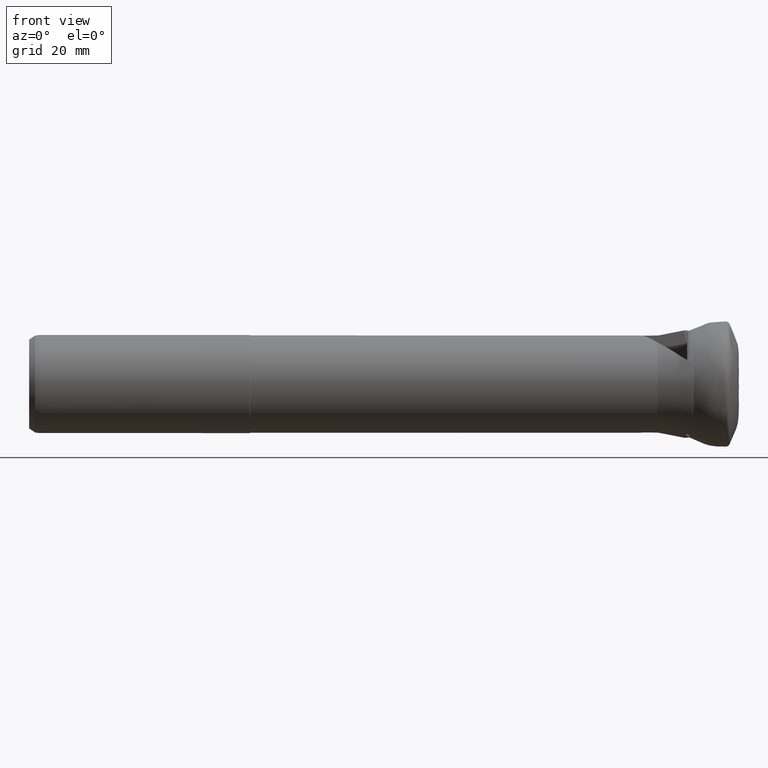
[diagram: clean part render]
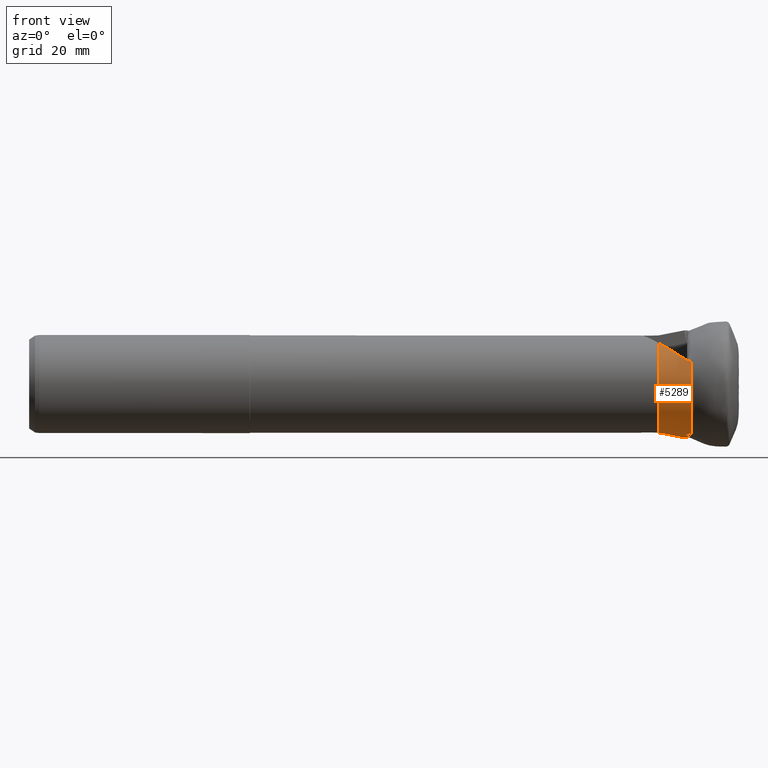
[diagram: same view with one face highlighted and labeled with its STEP entity id]
A machine part, front view. The second image highlights one B-rep face of the part: STEP entity #5289.
In plain terms, the highlighted conical surface has half-angle 10.845 deg.
Its self-contained STEP definition (entity closure, byte-faithful):
#1 = CARTESIAN_POINT ( 'NONE',  ( -12.65968069004880500, -1.092420562634629100, -13.68781149856920200 ) ) ;
#2 = CARTESIAN_POINT ( 'NONE',  ( -12.79276334509418900, -0.8059738972701883100, -13.68212314345359300 ) ) ;
#8 = CARTESIAN_POINT ( 'NONE',  ( -13.40528090614652800, -11.74800982124328100, 6.827252767057250300 ) ) ;
#16 = CARTESIAN_POINT ( 'NONE',  ( -13.23310108302329800, -11.85373457883678200, 6.710974604995033800 ) ) ;
#26 = CARTESIAN_POINT ( 'NONE',  ( -12.84435055286813700, -0.4954412597049117600, -13.68625134253330300 ) ) ;
#36 = CARTESIAN_POINT ( 'NONE',  ( -12.83263345930503400, -0.6535574891598466800, -13.68277371050550600 ) ) ;
#151 = AXIS2_PLACEMENT_3D ( 'NONE', #5369, #4311, #425 ) ;
#189 = CARTESIAN_POINT ( 'NONE',  ( -12.45612504931564500, -1.332140386985413100, -13.70499935697644000 ) ) ;
#219 = CARTESIAN_POINT ( 'NONE',  ( -15.03643451692116000, -0.5101313038015200500, -13.26643968536416600 ) ) ;
#275 = CARTESIAN_POINT ( 'NONE',  ( -19.32557320726839800, -6.787148216991650600, 10.44156546968564000 ) ) ;
#367 = EDGE_CURVE ( 'NONE', #3466, #5135, #5146, .T. ) ;
#374 = CARTESIAN_POINT ( 'NONE',  ( -12.45612504931564500, -1.332140386985413100, -13.70499935697644000 ) ) ;
#385 = CARTESIAN_POINT ( 'NONE',  ( -17.18135353531055300, -0.6601186526344676700, -12.84862977732666100 ) ) ;
#425 = DIRECTION ( 'NONE',  ( 0.0000000000000000000, 0.0000000000000000000, -1.000000000000000000 ) ) ;
#723 = CARTESIAN_POINT ( 'NONE',  ( -12.67954887150709800, -12.14880422192221800, 6.391421337643772700 ) ) ;
#807 = CARTESIAN_POINT ( 'NONE',  ( -19.32557320726839500, -0.8100570984010128100, -12.42720716309479600 ) ) ;
#814 = CARTESIAN_POINT ( 'NONE',  ( -12.84698300556499500, -0.4598028699455925500, -13.68699039805626700 ) ) ;
#817 = CARTESIAN_POINT ( 'NONE',  ( -12.86167808883134900, -0.4265643384666993300, -13.68529023100981100 ) ) ;
#838 = CARTESIAN_POINT ( 'NONE',  ( -12.89099143549186300, -0.3601073089109347900, -13.68154237176579500 ) ) ;
#842 = CARTESIAN_POINT ( 'NONE',  ( -12.87634762523083200, -0.3933323494160804700, -13.68347421484867400 ) ) ;
#917 = CARTESIAN_POINT ( 'NONE',  ( -11.90381186348707500, -2.532479912616487600, -13.65546093501030700 ) ) ;
#1039 = ORIENTED_EDGE ( 'NONE', *, *, #4870, .T. ) ;
#1075 = EDGE_LOOP ( 'NONE', ( #4043, #3521, #5476, #1039, #1706, #2922, #3462, #4011, #5732, #3953, #5773 ) ) ;
#1083 = CARTESIAN_POINT ( 'NONE',  ( -11.02894916797867400, -5.760357854639778500, -12.80719041735890200 ) ) ;
#1101 = CARTESIAN_POINT ( 'NONE',  ( -11.15270846482246500, -5.804094255224002900, -12.76152200131287800 ) ) ;
#1119 = CARTESIAN_POINT ( 'NONE',  ( -11.28825498651624300, -5.820762174248489600, -12.72524407500796400 ) ) ;
#1133 = CARTESIAN_POINT ( 'NONE',  ( -11.55719903894039100, -5.797303258961080500, -12.67931739226733400 ) ) ;
#1193 = CARTESIAN_POINT ( 'NONE',  ( -11.69204503846278200, -5.756919555196454000, -12.66947479727533500 ) ) ;
#1246 = CARTESIAN_POINT ( 'NONE',  ( -11.61870751189143800, -3.128099959777931100, -13.57425423911942500 ) ) ;
#1281 = CARTESIAN_POINT ( 'NONE',  ( -13.40528090614652800, -11.74800982124328100, 6.827252767057250300 ) ) ;
#1298 = CARTESIAN_POINT ( 'NONE',  ( -11.93513915040344600, -5.629116608085444900, -12.67583450436238700 ) ) ;
#1318 = CARTESIAN_POINT ( 'NONE',  ( -12.04338611504323700, -5.542483340353614500, -12.69161613137120900 ) ) ;
#1329 = CARTESIAN_POINT ( 'NONE',  ( -12.22102579417288500, -5.337497540033777600, -12.74228971231637400 ) ) ;
#1340 = CARTESIAN_POINT ( 'NONE',  ( -12.28871606388787400, -5.221918529721213200, -12.77632694363128300 ) ) ;
#1365 = CARTESIAN_POINT ( 'NONE',  ( -12.37862935809820000, -4.972436688421540300, -12.85700836973423700 ) ) ;
#1366 = CONICAL_SURFACE ( 'NONE', #2837, 14.04299999999999700, 0.1892808887716079800 ) ;
#1378 = CARTESIAN_POINT ( 'NONE',  ( -12.39909997961242800, -4.843204250657307400, -12.90213077118152400 ) ) ;
#1383 = CARTESIAN_POINT ( 'NONE',  ( -11.02894916797865900, -12.79865063447538300, 5.779307132921980300 ) ) ;
#1387 = CARTESIAN_POINT ( 'NONE',  ( -12.38954685881845700, -4.584583892997182300, -12.99821680240491500 ) ) ;
#1408 = CARTESIAN_POINT ( 'NONE',  ( -12.35904825581561200, -4.457667082820877100, -13.04833446378184900 ) ) ;
#1421 = CARTESIAN_POINT ( 'NONE',  ( -12.24911642754527600, -4.226277682618597700, -13.14722822256404400 ) ) ;
#1428 = CARTESIAN_POINT ( 'NONE',  ( -12.16890843064926400, -4.121321713930150600, -13.19633598927820900 ) ) ;
#1493 = CIRCLE ( 'NONE', #3008, 12.45358062474983500 ) ;
#1499 = CARTESIAN_POINT ( 'NONE',  ( -11.97132206715624900, -3.954475031664891100, -13.28678769912566800 ) ) ;
#1501 = B_SPLINE_CURVE_WITH_KNOTS ( 'NONE', 3,
 ( #1900, #219, #385, #2316 ),
 .UNSPECIFIED., .F., .F.,
 ( 4, 4 ),
 ( 0.001901110023278222800, 0.008472232262891068000 ),
 .UNSPECIFIED. ) ;
#1550 = CARTESIAN_POINT ( 'NONE',  ( -13.05368916442701800, -11.95486881565107000, 6.600167208681215300 ) ) ;
#1555 = CARTESIAN_POINT ( 'NONE',  ( -11.72447574804194100, -3.855969777800164300, -13.36460931204083900 ) ) ;
#1632 = FACE_OUTER_BOUND ( 'NONE', #1075, .T. ) ;
#1647 = DIRECTION ( 'NONE',  ( 0.0000000000000000000, 0.0000000000000000000, -1.000000000000000000 ) ) ;
#1652 = DIRECTION ( 'NONE',  ( 1.000000000000000000, -0.0000000000000000000, -0.0000000000000000000 ) ) ;
#1656 = CARTESIAN_POINT ( 'NONE',  ( -19.32557320726839500, 0.0000000000000000000, 0.0000000000000000000 ) ) ;
#1675 = VERTEX_POINT ( 'NONE', #2401 ) ;
#1706 = ORIENTED_EDGE ( 'NONE', *, *, #3730, .F. ) ;
#1782 = CARTESIAN_POINT ( 'NONE',  ( -11.85249808223479000, -3.891394478471840400, -13.32886235079927000 ) ) ;
#1788 = CARTESIAN_POINT ( 'NONE',  ( -12.84698300556499500, -0.4598028699455925500, -13.68699039805626700 ) ) ;
#1827 = EDGE_CURVE ( 'NONE', #5642, #1938, #1493, .T. ) ;
#1900 = CARTESIAN_POINT ( 'NONE',  ( -12.89099143549186300, -0.3601073089109347900, -13.68154237176579500 ) ) ;
#1938 = VERTEX_POINT ( 'NONE', #807 ) ;
#2232 = CARTESIAN_POINT ( 'NONE',  ( -19.32557320726839800, -6.787148216991650600, 10.44156546968564000 ) ) ;
#2275 = CARTESIAN_POINT ( 'NONE',  ( -17.69207920281028000, -8.667597417601445600, 9.592485727338996100 ) ) ;
#2316 = CARTESIAN_POINT ( 'NONE',  ( -19.32557320726839500, -0.8100570984010128100, -12.42720716309479600 ) ) ;
#2393 = VERTEX_POINT ( 'NONE', #4376 ) ;
#2397 = VERTEX_POINT ( 'NONE', #4232 ) ;
#2401 = CARTESIAN_POINT ( 'NONE',  ( -13.40528090614652800, -11.74800982124328100, 6.827252767057250300 ) ) ;
#2404 = CARTESIAN_POINT ( 'NONE',  ( -11.02894916797867400, -5.760357854639778500, -12.80719041735890200 ) ) ;
#2433 = VERTEX_POINT ( 'NONE', #3925 ) ;
#2454 = VERTEX_POINT ( 'NONE', #3814 ) ;
#2560 = EDGE_CURVE ( 'NONE', #2393, #5135, #4607, .T. ) ;
#2594 = CARTESIAN_POINT ( 'NONE',  ( -11.46822728025505000, -12.65933630768786100, 5.883343068344633900 ) ) ;
#2686 = EDGE_CURVE ( 'Kante167', #2397, #1938, #1501, .T. ) ;
#2837 = AXIS2_PLACEMENT_3D ( 'NONE', #4224, #3966, #3942 ) ;
#2922 = ORIENTED_EDGE ( 'NONE', *, *, #5098, .T. ) ;
#2982 = EDGE_CURVE ( 'NONE', #5642, #1675, #3074, .T. ) ;
#3008 = AXIS2_PLACEMENT_3D ( 'NONE', #1656, #1652, #1647 ) ;
#3074 =( BOUNDED_CURVE ( )  B_SPLINE_CURVE ( 3, ( #2232, #2275, #3859, #1281 ),
 .UNSPECIFIED., .F., .F. ) 
 B_SPLINE_CURVE_WITH_KNOTS ( ( 4, 4 ),
 ( 3.833729324262100200, 4.245138199799168200 ),
 .UNSPECIFIED. ) 
 CURVE ( )  GEOMETRIC_REPRESENTATION_ITEM ( )  RATIONAL_B_SPLINE_CURVE ( ( 1.000000000000000000, 0.9859448941430205600, 0.9859448941430205600, 1.000000000000000000 ) ) 
 REPRESENTATION_ITEM ( '' )  );
#3340 =( BOUNDED_CURVE ( )  B_SPLINE_CURVE ( 3, ( #189, #4035, #917, #1246 ),
 .UNSPECIFIED., .F., .T. ) 
 B_SPLINE_CURVE_WITH_KNOTS ( ( 4, 4 ),
 ( 4.313406564719507200, 4.439533897113696200 ),
 .UNSPECIFIED. ) 
 CURVE ( )  GEOMETRIC_REPRESENTATION_ITEM ( )  RATIONAL_B_SPLINE_CURVE ( ( 1.000000000000000000, 0.9986747639641249100, 0.9986747639641249100, 1.000000000000000000 ) ) 
 REPRESENTATION_ITEM ( '' )  );
#3462 = ORIENTED_EDGE ( 'NONE', *, *, #5718, .T. ) ;
#3466 = VERTEX_POINT ( 'NONE', #4363 ) ;
#3521 = ORIENTED_EDGE ( 'NONE', *, *, #1827, .T. ) ;
#3730 = EDGE_CURVE ( 'NONE', #2433, #4523, #5665, .T. ) ;
#3738 =( BOUNDED_CURVE ( )  B_SPLINE_CURVE ( 3, ( #838, #842, #817, #814 ),
 .UNSPECIFIED., .F., .T. ) 
 B_SPLINE_CURVE_WITH_KNOTS ( ( 4, 4 ),
 ( 4.245314150330235000, 4.252305769071394800 ),
 .UNSPECIFIED. ) 
 CURVE ( )  GEOMETRIC_REPRESENTATION_ITEM ( )  RATIONAL_B_SPLINE_CURVE ( ( 1.000000000000000000, 0.9999959264430966500, 0.9999959264430966500, 1.000000000000000000 ) ) 
 REPRESENTATION_ITEM ( '' )  );
#3742 = CARTESIAN_POINT ( 'NONE',  ( -12.45612504931564500, -1.332140386985413100, -13.70499935697644000 ) ) ;
#3743 = B_SPLINE_CURVE_WITH_KNOTS ( 'NONE', 3,
 ( #8, #16, #1550, #723, #4863, #3980, #2594, #1383 ),
 .UNSPECIFIED., .F., .F.,
 ( 4, 2, 2, 4 ),
 ( 0.001854455818471966900, 0.002552839603542207900, 0.003251223388612448800, 0.004647990958752938400 ),
 .UNSPECIFIED. ) ;
#3767 = EDGE_CURVE ( 'NONE', #2393, #2454, #5138, .T. ) ;
#3814 = CARTESIAN_POINT ( 'NONE',  ( -11.61870751189143800, -3.128099959777931100, -13.57425423911942500 ) ) ;
#3859 = CARTESIAN_POINT ( 'NONE',  ( -15.69051625668242300, -10.34479108691687300, 8.370540253476267600 ) ) ;
#3925 = CARTESIAN_POINT ( 'NONE',  ( -12.84435055286813700, -0.4954412597049117600, -13.68625134253330300 ) ) ;
#3933 = CARTESIAN_POINT ( 'NONE',  ( -11.61870751189143800, -3.128099959777931100, -13.57425423911942500 ) ) ;
#3934 = CARTESIAN_POINT ( 'NONE',  ( -11.65550015151433500, -3.372522896767943900, -13.51069528447676600 ) ) ;
#3941 = CARTESIAN_POINT ( 'NONE',  ( -11.72447574804194100, -3.855969777800164300, -13.36460931204083900 ) ) ;
#3942 = DIRECTION ( 'NONE',  ( 0.0000000000000000000, 0.0000000000000000000, -1.000000000000000000 ) ) ;
#3953 = ORIENTED_EDGE ( 'NONE', *, *, #367, .F. ) ;
#3963 = CARTESIAN_POINT ( 'NONE',  ( -11.69076418593813400, -3.615200918572706500, -13.44079787298210600 ) ) ;
#3966 = DIRECTION ( 'NONE',  ( 1.000000000000000000, -0.0000000000000000000, -0.0000000000000000000 ) ) ;
#3980 = CARTESIAN_POINT ( 'NONE',  ( -11.88681271452066600, -12.50399559778486800, 6.026899111013603000 ) ) ;
#3984 = CARTESIAN_POINT ( 'NONE',  ( -12.84698300556499500, -0.4598028699455925500, -13.68699039805626700 ) ) ;
#3993 = CARTESIAN_POINT ( 'NONE',  ( -12.84610833435503000, -0.4716826318634737000, -13.68675896649126000 ) ) ;
#4011 = ORIENTED_EDGE ( 'NONE', *, *, #3767, .F. ) ;
#4024 = CARTESIAN_POINT ( 'NONE',  ( -12.84435055286813700, -0.4954412597049117600, -13.68625134253330300 ) ) ;
#4035 = CARTESIAN_POINT ( 'NONE',  ( -12.18332145881658200, -1.933032312123858000, -13.69910047365184100 ) ) ;
#4043 = ORIENTED_EDGE ( 'NONE', *, *, #2982, .F. ) ;
#4139 = CARTESIAN_POINT ( 'NONE',  ( -12.84523084966186300, -0.4835621013559866500, -13.68651261452087900 ) ) ;
#4224 = CARTESIAN_POINT ( 'NONE',  ( -11.02894916797865900, 0.0000000000000000000, 0.0000000000000000000 ) ) ;
#4232 = CARTESIAN_POINT ( 'NONE',  ( -12.89099143549186300, -0.3601073089109347900, -13.68154237176579500 ) ) ;
#4311 = DIRECTION ( 'NONE',  ( 1.000000000000000000, -0.0000000000000000000, -0.0000000000000000000 ) ) ;
#4363 = CARTESIAN_POINT ( 'NONE',  ( -11.02894916797865900, -12.79865063447538300, 5.779307132921980300 ) ) ;
#4376 = CARTESIAN_POINT ( 'NONE',  ( -11.72447574804194100, -3.855969777800164300, -13.36460931204083900 ) ) ;
#4523 = VERTEX_POINT ( 'NONE', #1788 ) ;
#4607 = B_SPLINE_CURVE_WITH_KNOTS ( 'NONE', 3,
 ( #1555, #1782, #1499, #1428, #1421, #1408, #1387, #1378, #1365, #1340, #1329, #1318, #1298, #1193, #1133, #1119, #1101, #1083 ),
 .UNSPECIFIED., .F., .F.,
 ( 4, 2, 2, 2, 2, 2, 2, 2, 4 ),
 ( 0.0007224072592166936800, 0.001133179250998475900, 0.001543951242780258100, 0.001954723234562040200, 0.002365495226343822600, 0.002776267218125605000, 0.003187039209907387100, 0.003597811201689169100, 0.004008583193470951500 ),
 .UNSPECIFIED. ) ;
#4863 = CARTESIAN_POINT ( 'NONE',  ( -12.48452387331412400, -12.24165672203620400, 6.293467619059915000 ) ) ;
#4870 = EDGE_CURVE ( 'NONE', #2397, #4523, #3738, .T. ) ;
#4958 = B_SPLINE_CURVE_WITH_KNOTS ( 'NONE', 3,
 ( #26, #36, #2, #1, #5608, #3742 ),
 .UNSPECIFIED., .F., .F.,
 ( 4, 2, 4 ),
 ( 1.084202172485504300E-019, 0.0004689846848863576200, 0.0009379693697727149200 ),
 .UNSPECIFIED. ) ;
#4984 = VERTEX_POINT ( 'NONE', #374 ) ;
#5098 = EDGE_CURVE ( 'NONE', #2433, #4984, #4958, .T. ) ;
#5116 = EDGE_CURVE ( 'NONE', #1675, #3466, #3743, .T. ) ;
#5135 = VERTEX_POINT ( 'NONE', #2404 ) ;
#5138 =( BOUNDED_CURVE ( )  B_SPLINE_CURVE ( 3, ( #3941, #3963, #3934, #3933 ),
 .UNSPECIFIED., .F., .F. ) 
 B_SPLINE_CURVE_WITH_KNOTS ( ( 4, 4 ),
 ( 3.652654984011928500, 3.704687671997407800 ),
 .UNSPECIFIED. ) 
 CURVE ( )  GEOMETRIC_REPRESENTATION_ITEM ( )  RATIONAL_B_SPLINE_CURVE ( ( 1.000000000000000000, 0.9997743960071892000, 0.9997743960071892000, 1.000000000000000000 ) ) 
 REPRESENTATION_ITEM ( '' )  );
#5146 = CIRCLE ( 'NONE', #151, 14.04299999999999700 ) ;
#5289 = ADVANCED_FACE ( 'NONE', ( #1632 ), #1366, .T. ) ;
#5369 = CARTESIAN_POINT ( 'NONE',  ( -11.02894916797865900, 0.0000000000000000000, 0.0000000000000000000 ) ) ;
#5476 = ORIENTED_EDGE ( 'NONE', *, *, #2686, .F. ) ;
#5608 = CARTESIAN_POINT ( 'NONE',  ( -12.56889444204531300, -1.221186951673230100, -13.69407862162433900 ) ) ;
#5642 = VERTEX_POINT ( 'NONE', #275 ) ;
#5665 =( BOUNDED_CURVE ( )  B_SPLINE_CURVE ( 3, ( #4024, #4139, #3993, #3984 ),
 .UNSPECIFIED., .F., .F. ) 
 B_SPLINE_CURVE_WITH_KNOTS ( ( 4, 4 ),
 ( 2.767098926285665800, 2.769609446091040100 ),
 .UNSPECIFIED. ) 
 CURVE ( )  GEOMETRIC_REPRESENTATION_ITEM ( )  RATIONAL_B_SPLINE_CURVE ( ( 1.000000000000000000, 0.9999994747742612100, 0.9999994747742612100, 1.000000000000000000 ) ) 
 REPRESENTATION_ITEM ( '' )  );
#5718 = EDGE_CURVE ( 'NONE', #4984, #2454, #3340, .T. ) ;
#5732 = ORIENTED_EDGE ( 'NONE', *, *, #2560, .T. ) ;
#5773 = ORIENTED_EDGE ( 'NONE', *, *, #5116, .F. ) ;